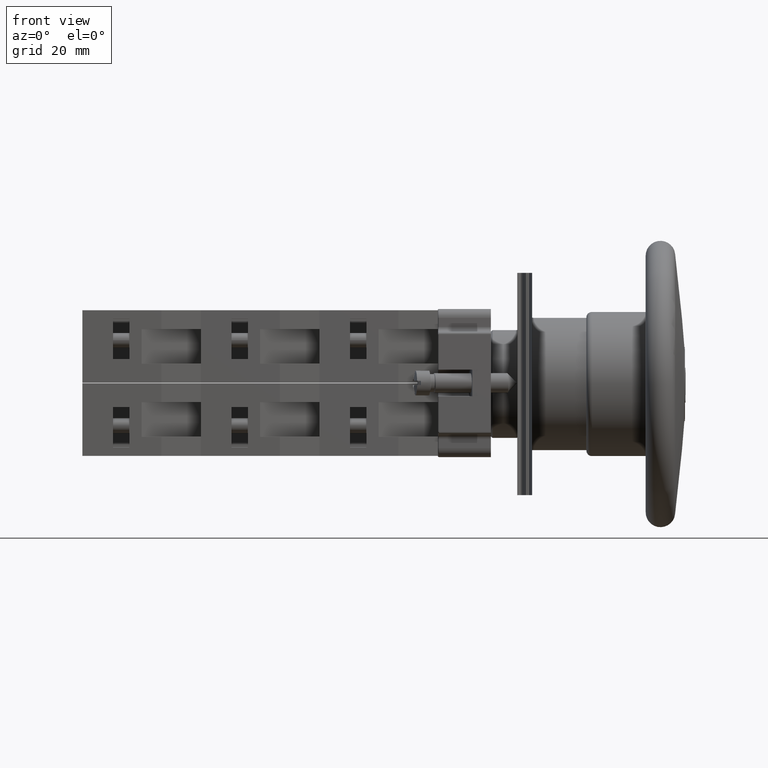
[diagram: clean part render]
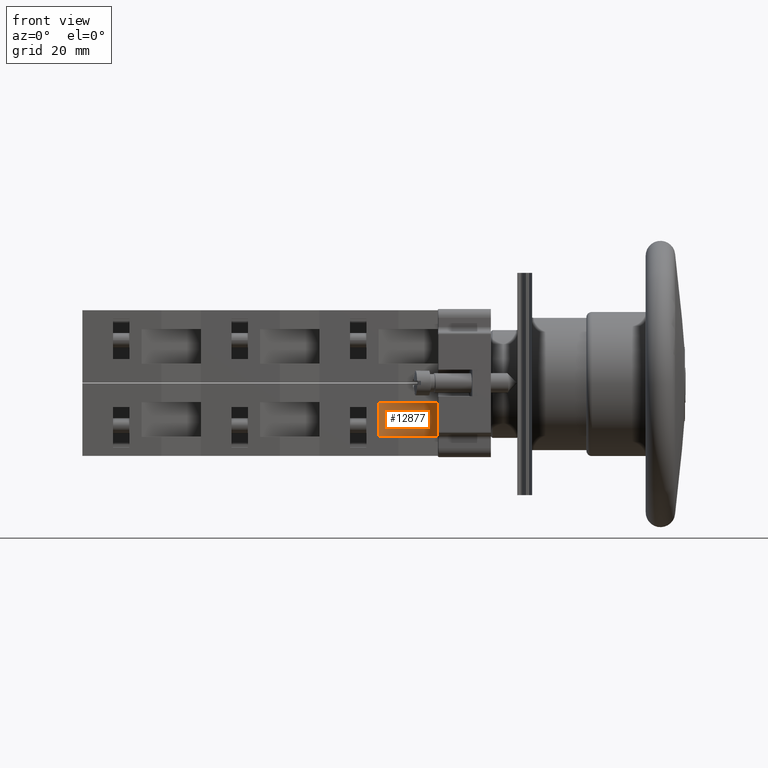
[diagram: same view with one face highlighted and labeled with its STEP entity id]
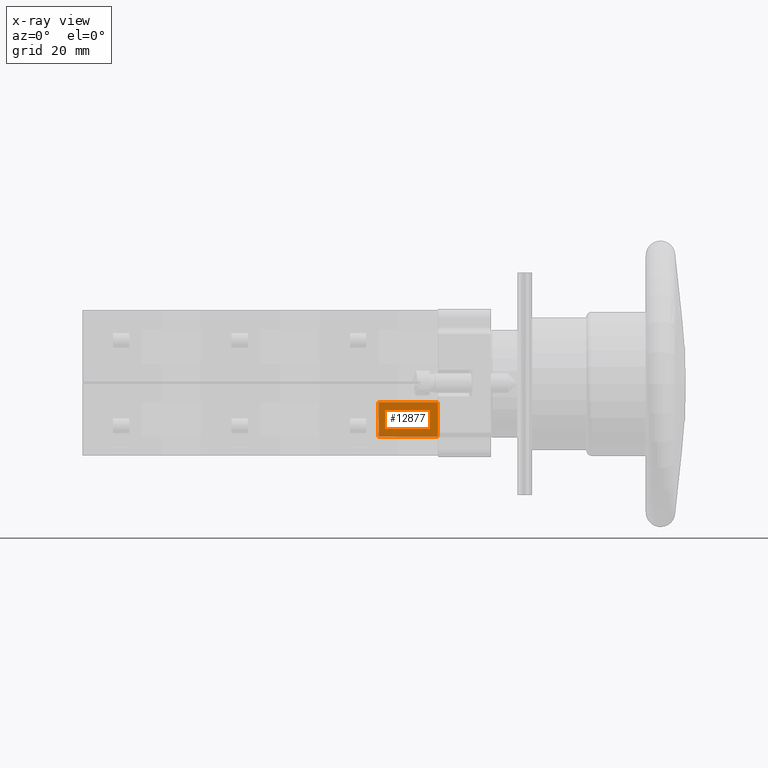
[diagram: x-ray of the same camera — body ghosted, the highlighted face saturated]
A machine part, front view. The second image highlights one B-rep face of the part: STEP entity #12877.
The next image is the same camera in x-ray: the body ghosted, the highlighted face saturated — about 0% of this face is hidden behind the body in this view.
In plain terms, the highlighted planar face has unit normal (-0.6, 0.8, -0).
Its self-contained STEP definition (entity closure, byte-faithful):
#12822=CARTESIAN_POINT('',(-24.936741828918464,-0.202926676720378,10.850000000000000));
#12823=VERTEX_POINT('',#12822);
#12830=CARTESIAN_POINT('',(-15.936741828918466,11.797073323279626,10.850000000000000));
#12831=VERTEX_POINT('',#12830);
#12832=CARTESIAN_POINT('',(-24.936741828918464,-0.202926676720378,10.850000000000000));
#12833=DIRECTION('',(0.600000000000000,0.800000000000000,0.0));
#12834=VECTOR('',#12833,15.000000000000002);
#12835=LINE('',#12832,#12834);
#12836=EDGE_CURVE('',#12823,#12831,#12835,.T.);
#12847=CARTESIAN_POINT('',(-15.936741828918466,11.797073323279626,7.350000000000000));
#12848=DIRECTION('',(-0.800000000000000,0.600000000000000,0.0));
#12849=DIRECTION('',(0.0,0.0,1.0));
#12850=AXIS2_PLACEMENT_3D('',#12847,#12848,#12849);
#12851=PLANE('',#12850);
#12852=CARTESIAN_POINT('',(-15.936741828918466,11.797073323279626,3.850000000000001));
#12853=VERTEX_POINT('',#12852);
#12854=CARTESIAN_POINT('',(-24.936741828918464,-0.202926676720378,3.850000000000001));
#12855=VERTEX_POINT('',#12854);
#12856=CARTESIAN_POINT('',(-15.936741828918466,11.797073323279626,3.850000000000001));
#12857=DIRECTION('',(-0.600000000000000,-0.800000000000000,0.0));
#12858=VECTOR('',#12857,15.000000000000002);
#12859=LINE('',#12856,#12858);
#12860=EDGE_CURVE('',#12853,#12855,#12859,.T.);
#12861=ORIENTED_EDGE('',*,*,#12860,.F.);
#12862=CARTESIAN_POINT('',(-15.936741828918466,11.797073323279626,10.850000000000000));
#12863=DIRECTION('',(0.0,0.0,-1.0));
#12864=VECTOR('',#12863,6.999999999999999);
#12865=LINE('',#12862,#12864);
#12866=EDGE_CURVE('',#12831,#12853,#12865,.T.);
#12867=ORIENTED_EDGE('',*,*,#12866,.F.);
#12868=ORIENTED_EDGE('',*,*,#12836,.F.);
#12869=CARTESIAN_POINT('',(-24.936741828918464,-0.202926676720378,3.850000000000001));
#12870=DIRECTION('',(0.0,0.0,1.0));
#12871=VECTOR('',#12870,6.999999999999999);
#12872=LINE('',#12869,#12871);
#12873=EDGE_CURVE('',#12855,#12823,#12872,.T.);
#12874=ORIENTED_EDGE('',*,*,#12873,.F.);
#12875=EDGE_LOOP('',(#12861,#12867,#12868,#12874));
#12876=FACE_OUTER_BOUND('',#12875,.T.);
#12877=ADVANCED_FACE('',(#12876),#12851,.F.);